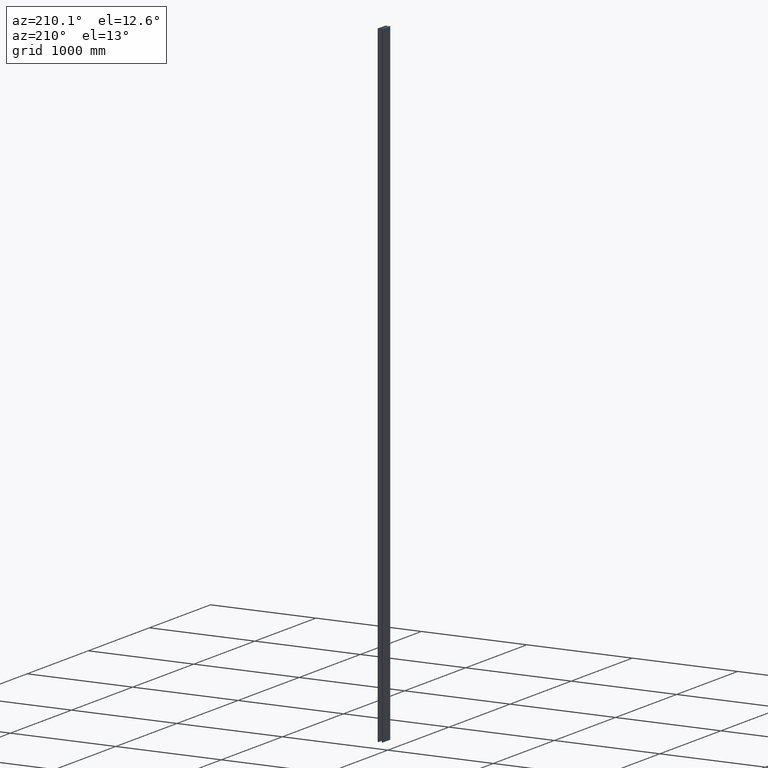
[diagram: clean part render]
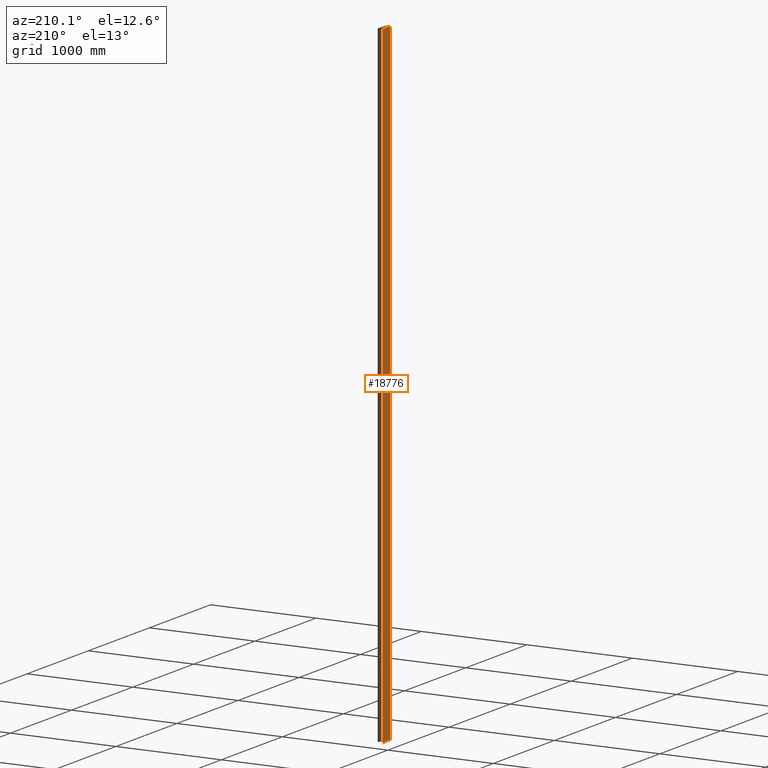
[diagram: same view with one face highlighted and labeled with its STEP entity id]
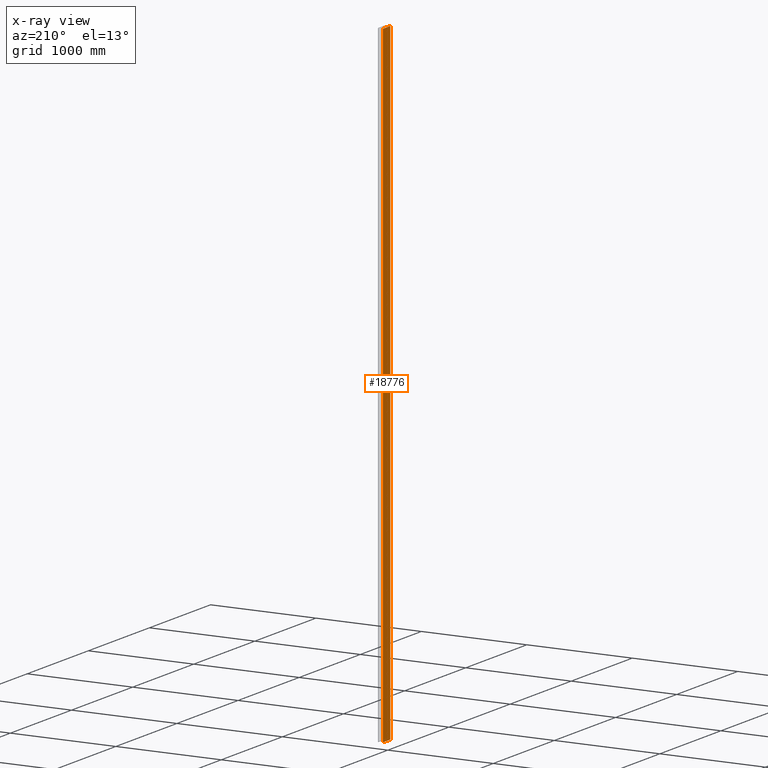
[diagram: x-ray of the same camera — body ghosted, the highlighted face saturated]
A machine part, auxiliary view. The second image highlights one B-rep face of the part: STEP entity #18776.
The next image is the same camera in x-ray: the body ghosted, the highlighted face saturated — about 0% of this face is hidden behind the body in this view.
In plain terms, the highlighted planar face has unit normal (1, 0, -0).
Its self-contained STEP definition (entity closure, byte-faithful):
#225 = VECTOR ( 'NONE', #18785, 1000.000000000000000 ) ;
#903 = LINE ( 'NONE', #11816, #225 ) ;
#1057 = CARTESIAN_POINT ( 'NONE',  ( -23.50000000000000000, -2.630064624868062200E-015, 3000.000000000000000 ) ) ;
#2678 = VERTEX_POINT ( 'NONE', #19397 ) ;
#3413 = FACE_OUTER_BOUND ( 'NONE', #18176, .T. ) ;
#3617 = CARTESIAN_POINT ( 'NONE',  ( -23.50000000000001400, 124.0000000000000000, 3000.000000000000000 ) ) ;
#3678 = VERTEX_POINT ( 'NONE', #11640 ) ;
#4802 = CARTESIAN_POINT ( 'NONE',  ( -23.50000000000000000, -8.538638580944036700E-022, 3000.000000000000000 ) ) ;
#6060 = CARTESIAN_POINT ( 'NONE',  ( -23.50000000000001400, 124.0000000000000000, 3000.000000000000000 ) ) ;
#6126 = CARTESIAN_POINT ( 'NONE',  ( -23.50000000000001400, 124.0000000000000000, -3000.000000000000000 ) ) ;
#6758 = CARTESIAN_POINT ( 'NONE',  ( -23.50000000000000000, -2.630064624868062200E-015, -3000.000000000000000 ) ) ;
#6996 = VECTOR ( 'NONE', #17851, 1000.000000000000000 ) ;
#7844 = VERTEX_POINT ( 'NONE', #6126 ) ;
#8162 = DIRECTION ( 'NONE',  ( -0.0000000000000000000, -0.0000000000000000000, -1.000000000000000000 ) ) ;
#8299 = LINE ( 'NONE', #3617, #13776 ) ;
#8380 = LINE ( 'NONE', #4802, #6996 ) ;
#9842 = ORIENTED_EDGE ( 'NONE', *, *, #19715, .T. ) ;
#11584 = EDGE_CURVE ( 'NONE', #3678, #2678, #8380, .T. ) ;
#11640 = CARTESIAN_POINT ( 'NONE',  ( -23.50000000000000000, -8.538638580944036700E-022, 3000.000000000000000 ) ) ;
#11801 = EDGE_CURVE ( 'NONE', #18458, #3678, #903, .T. ) ;
#11816 = CARTESIAN_POINT ( 'NONE',  ( -23.50000000000000000, -2.630064624868062200E-015, 3000.000000000000000 ) ) ;
#11965 = DIRECTION ( 'NONE',  ( 1.000000000000000000, 1.119176436114069100E-016, -0.0000000000000000000 ) ) ;
#13776 = VECTOR ( 'NONE', #8162, 1000.000000000000000 ) ;
#14167 = ORIENTED_EDGE ( 'NONE', *, *, #23779, .T. ) ;
#17851 = DIRECTION ( 'NONE',  ( -0.0000000000000000000, -0.0000000000000000000, -1.000000000000000000 ) ) ;
#18176 = EDGE_LOOP ( 'NONE', ( #9842, #21451, #25097, #14167 ) ) ;
#18363 = LINE ( 'NONE', #6758, #20060 ) ;
#18458 = VERTEX_POINT ( 'NONE', #6060 ) ;
#18776 = ADVANCED_FACE ( 'NONE', ( #3413 ), #25053, .F. ) ;
#18785 = DIRECTION ( 'NONE',  ( 1.119176436114069100E-016, -1.000000000000000000, 0.0000000000000000000 ) ) ;
#19397 = CARTESIAN_POINT ( 'NONE',  ( -23.50000000000000000, -8.538638580944036700E-022, -3000.000000000000000 ) ) ;
#19715 = EDGE_CURVE ( 'NONE', #7844, #2678, #18363, .T. ) ;
#20060 = VECTOR ( 'NONE', #20557, 1000.000000000000000 ) ;
#20557 = DIRECTION ( 'NONE',  ( 1.119176436114069100E-016, -1.000000000000000000, 0.0000000000000000000 ) ) ;
#21444 = AXIS2_PLACEMENT_3D ( 'NONE', #1057, #11965, #27214 ) ;
#21451 = ORIENTED_EDGE ( 'NONE', *, *, #11584, .F. ) ;
#23779 = EDGE_CURVE ( 'NONE', #18458, #7844, #8299, .T. ) ;
#25053 = PLANE ( 'NONE',  #21444 ) ;
#25097 = ORIENTED_EDGE ( 'NONE', *, *, #11801, .F. ) ;
#27214 = DIRECTION ( 'NONE',  ( -1.119176436114069100E-016, 1.000000000000000000, 0.0000000000000000000 ) ) ;